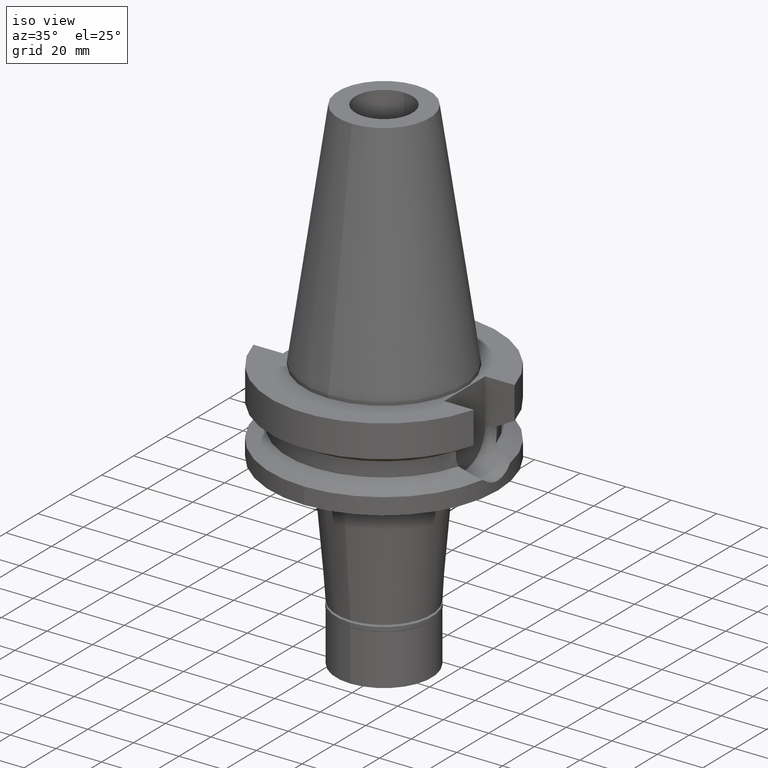
[diagram: clean part render]
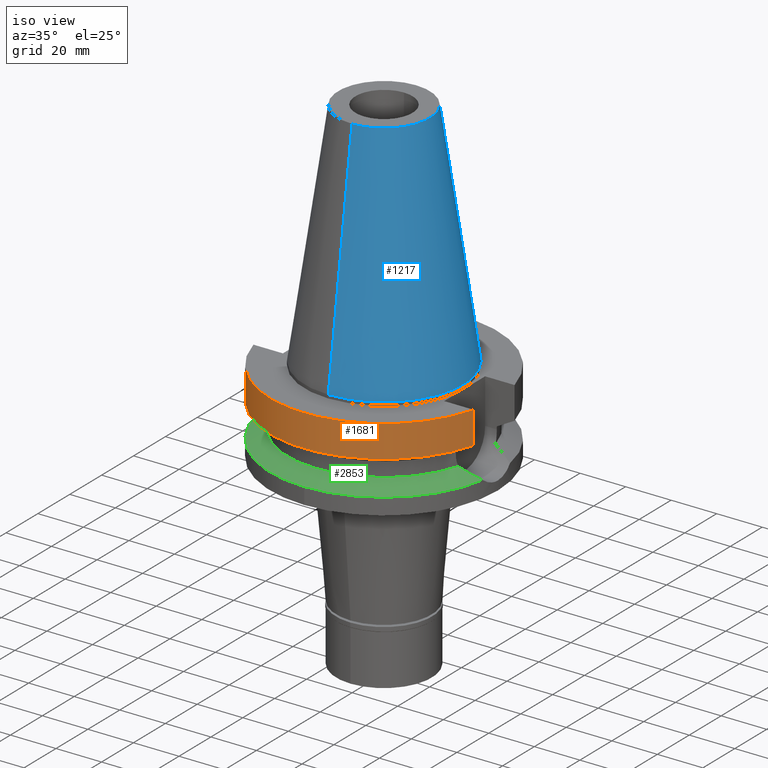
[diagram: same view with three faces highlighted in distinct colors, each labeled with its STEP entity id]
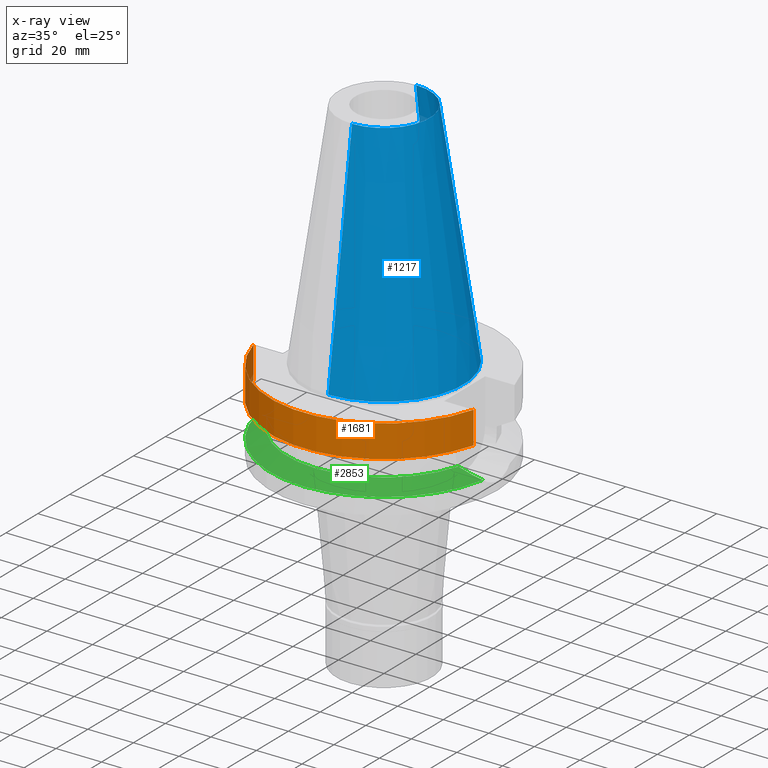
[diagram: x-ray of the same camera — body ghosted, the three highlighted faces saturated]
A machine part, iso view with three faces highlighted in distinct colors.
The next image is the same camera in x-ray (body ghosted, the three faces saturated) — at least one of them is partly hidden behind the body in this view.
Their STEP definitions:

[orange] entity #1681 — the highlighted cylindrical surface (partial cylindrical patch) has radius 50 mm, axis along (0, 0, -1).
#22 = EDGE_LOOP ( 'NONE', ( #828, #194, #1185, #300 ) ) ;
#143 = AXIS2_PLACEMENT_3D ( 'NONE', #966, #2428, #2210 ) ;
#194 = ORIENTED_EDGE ( 'NONE', *, *, #1740, .T. ) ;
#243 = CARTESIAN_POINT ( 'NONE',  ( -48.32057015392000210, -12.84999999999999964, -1.500000000000000000 ) ) ;
#277 = DIRECTION ( 'NONE',  ( 0.0000000000000000000, 0.0000000000000000000, -1.000000000000000000 ) ) ;
#279 = CARTESIAN_POINT ( 'NONE',  ( 48.32057015392000210, -12.84999999999999964, -15.66269223573000069 ) ) ;
#287 = EDGE_CURVE ( 'NONE', #1720, #1796, #1549, .T. ) ;
#298 = CARTESIAN_POINT ( 'NONE',  ( 48.32057015392000210, -12.84999999999999964, -1.500000000000000000 ) ) ;
#300 = ORIENTED_EDGE ( 'NONE', *, *, #287, .T. ) ;
#421 = CYLINDRICAL_SURFACE ( 'NONE', #1677, 50.00000000000000000 ) ;
#557 = AXIS2_PLACEMENT_3D ( 'NONE', #2198, #2798, #2728 ) ;
#645 = CIRCLE ( 'NONE', #557, 50.00000000000000000 ) ;
#828 = ORIENTED_EDGE ( 'NONE', *, *, #1470, .F. ) ;
#966 = CARTESIAN_POINT ( 'NONE',  ( 0.0000000000000000000, 2.602558145207999832E-14, -1.500000000000000000 ) ) ;
#1162 = LINE ( 'NONE', #2137, #1374 ) ;
#1185 = ORIENTED_EDGE ( 'NONE', *, *, #2374, .F. ) ;
#1374 = VECTOR ( 'NONE', #2826, 1000.000000000000114 ) ;
#1470 = EDGE_CURVE ( 'NONE', #2479, #1796, #3052, .T. ) ;
#1473 = CARTESIAN_POINT ( 'NONE',  ( 0.0000000000000000000, 2.602558145207999832E-14, 112.5150000000000006 ) ) ;
#1549 = CIRCLE ( 'NONE', #143, 50.00000000000000000 ) ;
#1567 = DIRECTION ( 'NONE',  ( -7.239020095503711178E-08, 2.722127237068891274E-07, 0.9999999999999603650 ) ) ;
#1652 = FACE_OUTER_BOUND ( 'NONE', #22, .T. ) ;
#1677 = AXIS2_PLACEMENT_3D ( 'NONE', #1473, #277, #2968 ) ;
#1681 = ADVANCED_FACE ( 'NONE', ( #1652 ), #421, .T. ) ;
#1686 = CARTESIAN_POINT ( 'NONE',  ( -48.32056912868000609, -12.85000385526000066, -15.66265770066999785 ) ) ;
#1720 = VERTEX_POINT ( 'NONE', #298 ) ;
#1740 = EDGE_CURVE ( 'NONE', #2479, #3115, #645, .T. ) ;
#1796 = VERTEX_POINT ( 'NONE', #243 ) ;
#2137 = CARTESIAN_POINT ( 'NONE',  ( 48.32057015392000210, -12.84999999999999964, -1.500000000000000000 ) ) ;
#2198 = CARTESIAN_POINT ( 'NONE',  ( 0.0000000000000000000, 1.006319759053999930E-14, -15.66269223573000069 ) ) ;
#2210 = DIRECTION ( 'NONE',  ( 0.0000000000000000000, -1.000000000000000000, 0.0000000000000000000 ) ) ;
#2374 = EDGE_CURVE ( 'NONE', #1720, #3115, #1162, .T. ) ;
#2428 = DIRECTION ( 'NONE',  ( 0.0000000000000000000, 0.0000000000000000000, -1.000000000000000000 ) ) ;
#2479 = VERTEX_POINT ( 'NONE', #1686 ) ;
#2728 = DIRECTION ( 'NONE',  ( 0.0000000000000000000, -1.000000000000000000, 0.0000000000000000000 ) ) ;
#2773 = CARTESIAN_POINT ( 'NONE',  ( -48.32056912868000609, -12.85000385526000066, -15.66265770066999785 ) ) ;
#2798 = DIRECTION ( 'NONE',  ( 0.0000000000000000000, 0.0000000000000000000, 1.000000000000000000 ) ) ;
#2826 = DIRECTION ( 'NONE',  ( -7.240225887955711812E-08, -2.722580684816890655E-07, -0.9999999999999603650 ) ) ;
#2968 = DIRECTION ( 'NONE',  ( 0.0000000000000000000, -1.000000000000000000, 0.0000000000000000000 ) ) ;
#3052 = LINE ( 'NONE', #2773, #3155 ) ;
#3115 = VERTEX_POINT ( 'NONE', #279 ) ;
#3155 = VECTOR ( 'NONE', #1567, 1000.000000000000114 ) ;

[blue] entity #1217 — the highlighted conical surface has half-angle 8.297 deg.
#125 = VECTOR ( 'NONE', #312, 1000.000000000000114 ) ;
#249 = CARTESIAN_POINT ( 'NONE',  ( 0.0000000000000000000, -20.07942971896000017, 101.7999999999999972 ) ) ;
#265 = FACE_OUTER_BOUND ( 'NONE', #593, .T. ) ;
#312 = DIRECTION ( 'NONE',  ( 0.0000000000000000000, 0.1443043893538948075, -0.9895333461855641000 ) ) ;
#390 = DIRECTION ( 'NONE',  ( 0.0000000000000000000, 0.0000000000000000000, -1.000000000000000000 ) ) ;
#430 = CARTESIAN_POINT ( 'NONE',  ( 0.0000000000000000000, -20.07942971896000017, 101.7999999999999972 ) ) ;
#454 = CARTESIAN_POINT ( 'NONE',  ( 0.0000000000000000000, 34.92499999999999716, 4.902744876745000264E-13 ) ) ;
#593 = EDGE_LOOP ( 'NONE', ( #2037, #2245, #1011, #2293 ) ) ;
#651 = CONICAL_SURFACE ( 'NONE', #2107, 27.50221485948000222, 0.1448099680379422438 ) ;
#781 = DIRECTION ( 'NONE',  ( 0.0000000000000000000, 1.000000000000000000, 0.0000000000000000000 ) ) ;
#856 = AXIS2_PLACEMENT_3D ( 'NONE', #2371, #390, #2381 ) ;
#1011 = ORIENTED_EDGE ( 'NONE', *, *, #1918, .F. ) ;
#1030 = CARTESIAN_POINT ( 'NONE',  ( 0.0000000000000000000, 1.847992019912999597E-14, 50.89999999999999858 ) ) ;
#1146 = CARTESIAN_POINT ( 'NONE',  ( 0.0000000000000000000, 20.07942971896000017, 101.7999999999999972 ) ) ;
#1169 = VECTOR ( 'NONE', #1656, 1000.000000000000114 ) ;
#1171 = CIRCLE ( 'NONE', #3051, 20.07942971896000017 ) ;
#1217 = ADVANCED_FACE ( 'NONE', ( #265 ), #651, .T. ) ;
#1508 = VERTEX_POINT ( 'NONE', #1146 ) ;
#1656 = DIRECTION ( 'NONE',  ( 0.0000000000000000000, -0.1443043893538948075, -0.9895333461855641000 ) ) ;
#1662 = VERTEX_POINT ( 'NONE', #454 ) ;
#1769 = LINE ( 'NONE', #2496, #125 ) ;
#1918 = EDGE_CURVE ( 'NONE', #1662, #2185, #3141, .T. ) ;
#2037 = ORIENTED_EDGE ( 'NONE', *, *, #2694, .T. ) ;
#2107 = AXIS2_PLACEMENT_3D ( 'NONE', #1030, #2291, #2274 ) ;
#2157 = VERTEX_POINT ( 'NONE', #430 ) ;
#2184 = LINE ( 'NONE', #249, #1169 ) ;
#2185 = VERTEX_POINT ( 'NONE', #2279 ) ;
#2245 = ORIENTED_EDGE ( 'NONE', *, *, #2521, .T. ) ;
#2274 = DIRECTION ( 'NONE',  ( 0.0000000000000000000, -1.000000000000000000, 0.0000000000000000000 ) ) ;
#2279 = CARTESIAN_POINT ( 'NONE',  ( 0.0000000000000000000, -34.92499999999999716, 4.902744876745000264E-13 ) ) ;
#2288 = EDGE_CURVE ( 'NONE', #1508, #1662, #1769, .T. ) ;
#2291 = DIRECTION ( 'NONE',  ( 0.0000000000000000000, 0.0000000000000000000, -1.000000000000000000 ) ) ;
#2293 = ORIENTED_EDGE ( 'NONE', *, *, #2288, .F. ) ;
#2371 = CARTESIAN_POINT ( 'NONE',  ( 0.0000000000000000000, 1.847992019912999597E-14, 3.979039320256999774E-13 ) ) ;
#2381 = DIRECTION ( 'NONE',  ( 0.0000000000000000000, 1.000000000000000000, 0.0000000000000000000 ) ) ;
#2496 = CARTESIAN_POINT ( 'NONE',  ( 0.0000000000000000000, 20.07942971896000017, 101.7999999999999972 ) ) ;
#2521 = EDGE_CURVE ( 'NONE', #2157, #2185, #2184, .T. ) ;
#2694 = EDGE_CURVE ( 'NONE', #1508, #2157, #1171, .T. ) ;
#2703 = DIRECTION ( 'NONE',  ( 0.0000000000000000000, 0.0000000000000000000, -1.000000000000000000 ) ) ;
#2988 = CARTESIAN_POINT ( 'NONE',  ( 0.0000000000000000000, 1.847992019912999597E-14, 101.7999999999999972 ) ) ;
#3051 = AXIS2_PLACEMENT_3D ( 'NONE', #2988, #2703, #781 ) ;
#3141 = CIRCLE ( 'NONE', #856, 34.92499999999999716 ) ;

[green] entity #2853 — the highlighted conical surface has half-angle 60 deg.
#29 = VERTEX_POINT ( 'NONE', #2382 ) ;
#31 = DIRECTION ( 'NONE',  ( 0.0000000000000000000, 0.0000000000000000000, -1.000000000000000000 ) ) ;
#152 = CARTESIAN_POINT ( 'NONE',  ( -45.48763164413869475, -10.32476857607971965, -28.80004496728165009 ) ) ;
#199 = CARTESIAN_POINT ( 'NONE',  ( -40.85052569294000335, -11.72538061688000077, -26.40718074535000426 ) ) ;
#223 = VERTEX_POINT ( 'NONE', #2600 ) ;
#228 = CARTESIAN_POINT ( 'NONE',  ( 0.0000000000000000000, 0.0000000000000000000, -30.73730776426999967 ) ) ;
#269 = ORIENTED_EDGE ( 'NONE', *, *, #1626, .F. ) ;
#315 = EDGE_CURVE ( 'NONE', #223, #1310, #3065, .T. ) ;
#405 = VERTEX_POINT ( 'NONE', #1330 ) ;
#418 = CARTESIAN_POINT ( 'NONE',  ( -45.96804583722175863, -10.13815793982858438, -29.04711648120100875 ) ) ;
#493 = FACE_OUTER_BOUND ( 'NONE', #3116, .T. ) ;
#496 = CIRCLE ( 'NONE', #1842, 50.00000000000000000 ) ;
#633 = CARTESIAN_POINT ( 'NONE',  ( -45.40648767852944445, -10.35550966069677337, -28.75830494433636275 ) ) ;
#644 = CARTESIAN_POINT ( 'NONE',  ( -48.08479611836643386, -9.198711504937728378, -30.13406735413093429 ) ) ;
#690 = B_SPLINE_CURVE_WITH_KNOTS ( 'NONE', 3,
 ( #3111, #925, #2901, #1665, #2634, #710 ),
 .UNSPECIFIED., .F., .F.,
 ( 4, 2, 4 ),
 ( 0.0000000000000000000, 0.5000000000000000000, 1.000000000000000000 ),
 .UNSPECIFIED. ) ;
#710 = CARTESIAN_POINT ( 'NONE',  ( 49.26250064874000145, -8.556052234130000045, -30.73730776426999967 ) ) ;
#880 = CARTESIAN_POINT ( 'NONE',  ( -45.64899820384680140, -10.26297407623542313, -28.88304405317096624 ) ) ;
#902 = CARTESIAN_POINT ( 'NONE',  ( -46.76107614102156873, -9.808613990251433989, -29.45467717067434066 ) ) ;
#918 = CARTESIAN_POINT ( 'NONE',  ( 0.0000000000000000000, 0.0000000000000000000, -28.57224425480999841 ) ) ;
#925 = CARTESIAN_POINT ( 'NONE',  ( 42.65276843331454160, -11.30684859931326258, -27.34065582335058053 ) ) ;
#1152 = CARTESIAN_POINT ( 'NONE',  ( -49.26250064874000145, -8.556052234130000045, -30.73730776426999967 ) ) ;
#1310 = VERTEX_POINT ( 'NONE', #1713 ) ;
#1330 = CARTESIAN_POINT ( 'NONE',  ( 40.85052569294000335, -11.72538061688000077, -26.40718074535000426 ) ) ;
#1375 = CARTESIAN_POINT ( 'NONE',  ( -40.85052569294000335, -11.72538061688000077, -26.40718074535000426 ) ) ;
#1428 = ORIENTED_EDGE ( 'NONE', *, *, #1430, .F. ) ;
#1430 = EDGE_CURVE ( 'NONE', #2020, #405, #1482, .T. ) ;
#1482 = CIRCLE ( 'NONE', #1594, 42.50000000000000000 ) ;
#1502 = DIRECTION ( 'NONE',  ( 0.9852500129747439050, -0.1711210446826074982, 0.0000000000000000000 ) ) ;
#1575 = ORIENTED_EDGE ( 'NONE', *, *, #315, .F. ) ;
#1594 = AXIS2_PLACEMENT_3D ( 'NONE', #2094, #1833, #2113 ) ;
#1626 = EDGE_CURVE ( 'NONE', #405, #223, #690, .T. ) ;
#1629 = CARTESIAN_POINT ( 'NONE',  ( -45.33520664062297811, -10.38233413377292536, -28.72163653603888633 ) ) ;
#1644 = CARTESIAN_POINT ( 'NONE',  ( -45.34834123505051195, -10.37740377228595534, -28.72839336076130223 ) ) ;
#1665 = CARTESIAN_POINT ( 'NONE',  ( 46.98619499800612687, -9.746444482933345199, -29.57072641481723707 ) ) ;
#1713 = CARTESIAN_POINT ( 'NONE',  ( 0.0000000000000000000, -50.00000000000000000, -30.73730776426999967 ) ) ;
#1776 = DIRECTION ( 'NONE',  ( 0.0000000000000000000, -1.000000000000000000, 0.0000000000000000000 ) ) ;
#1833 = DIRECTION ( 'NONE',  ( 0.0000000000000000000, 0.0000000000000000000, 1.000000000000000000 ) ) ;
#1842 = AXIS2_PLACEMENT_3D ( 'NONE', #2971, #31, #1776 ) ;
#1845 = CARTESIAN_POINT ( 'NONE',  ( -44.02326999202169588, -10.87401005465840598, -28.04672977489392949 ) ) ;
#1861 = CARTESIAN_POINT ( 'NONE',  ( -48.69611229847187417, -8.881083222310669711, -30.44723862484533328 ) ) ;
#1864 = EDGE_CURVE ( 'NONE', #29, #2020, #2870, .T. ) ;
#1884 = CARTESIAN_POINT ( 'NONE',  ( -46.23519726118651363, -10.02914485215031704, -29.18444281604552515 ) ) ;
#1900 = CARTESIAN_POINT ( 'NONE',  ( -47.10043010345228964, -9.658255134285539611, -29.62893994876160875 ) ) ;
#1917 = ORIENTED_EDGE ( 'NONE', *, *, #1864, .F. ) ;
#1964 = DIRECTION ( 'NONE',  ( 0.0000000000000000000, 0.0000000000000000000, -1.000000000000000000 ) ) ;
#2020 = VERTEX_POINT ( 'NONE', #199 ) ;
#2094 = CARTESIAN_POINT ( 'NONE',  ( 0.0000000000000000000, 0.0000000000000000000, -26.40718074535000426 ) ) ;
#2113 = DIRECTION ( 'NONE',  ( 0.0000000000000000000, -1.000000000000000000, 0.0000000000000000000 ) ) ;
#2145 = CARTESIAN_POINT ( 'NONE',  ( -42.53176635997387933, -11.33494872187369218, -27.27798256778602948 ) ) ;
#2154 = AXIS2_PLACEMENT_3D ( 'NONE', #228, #1964, #1502 ) ;
#2252 = CONICAL_SURFACE ( 'NONE', #3004, 46.25000000000000000, 1.047197551196400456 ) ;
#2382 = CARTESIAN_POINT ( 'NONE',  ( -49.26250064874000145, -8.556052234130000045, -30.73730776426999967 ) ) ;
#2416 = DIRECTION ( 'NONE',  ( 0.0000000000000000000, -1.000000000000000000, 0.0000000000000000000 ) ) ;
#2600 = CARTESIAN_POINT ( 'NONE',  ( 49.26250064874000145, -8.556052234130000045, -30.73730776426999967 ) ) ;
#2631 = ORIENTED_EDGE ( 'NONE', *, *, #3047, .F. ) ;
#2634 = CARTESIAN_POINT ( 'NONE',  ( 48.20258415072390079, -9.164302221225664624, -30.19448398214517582 ) ) ;
#2853 = ADVANCED_FACE ( 'NONE', ( #493 ), #2252, .T. ) ;
#2855 = CARTESIAN_POINT ( 'NONE',  ( -45.37161297489223699, -10.36865064916622714, -28.74036485941423891 ) ) ;
#2870 = B_SPLINE_CURVE_WITH_KNOTS ( 'NONE', 3,
 ( #1152, #1861, #644, #1900, #902, #1884, #418, #880, #152, #633, #2855, #1644, #1629, #1845, #2145, #1375 ),
 .UNSPECIFIED., .F., .F.,
 ( 4, 2, 2, 1, 1, 1, 1, 2, 2, 4 ),
 ( 0.0000000000000000000, 0.2499999999999827360, 0.3749999999999751865, 0.4374999999999711342, 0.4687499999999691913, 0.4843749999999692468, 0.4921874999999690248, 0.4960937499999679701, 0.4999999999999669154, 1.000000000000000000 ),
 .UNSPECIFIED. ) ;
#2901 = CARTESIAN_POINT ( 'NONE',  ( 44.24047138316721828, -10.80644064328581599, -28.15875552685660921 ) ) ;
#2971 = CARTESIAN_POINT ( 'NONE',  ( 0.0000000000000000000, 0.0000000000000000000, -30.73730776426999967 ) ) ;
#3004 = AXIS2_PLACEMENT_3D ( 'NONE', #918, #3149, #2416 ) ;
#3047 = EDGE_CURVE ( 'NONE', #1310, #29, #496, .T. ) ;
#3065 = CIRCLE ( 'NONE', #2154, 50.00000000000000000 ) ;
#3111 = CARTESIAN_POINT ( 'NONE',  ( 40.85052569294000335, -11.72538061688000077, -26.40718074535000426 ) ) ;
#3116 = EDGE_LOOP ( 'NONE', ( #2631, #1575, #269, #1428, #1917 ) ) ;
#3149 = DIRECTION ( 'NONE',  ( 0.0000000000000000000, 0.0000000000000000000, -1.000000000000000000 ) ) ;